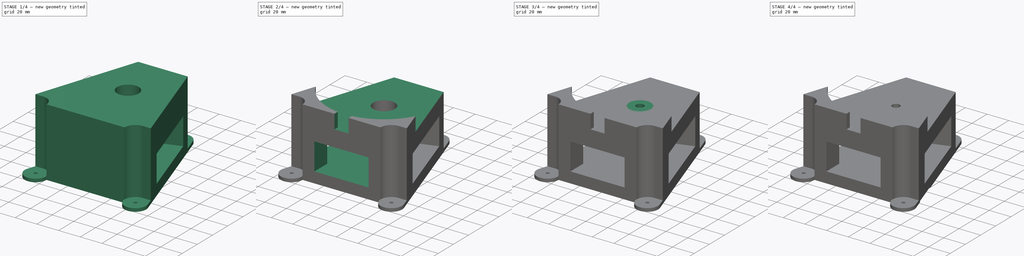
[diagram: build sequence overview — one tinted view per stage of 4, left to right]
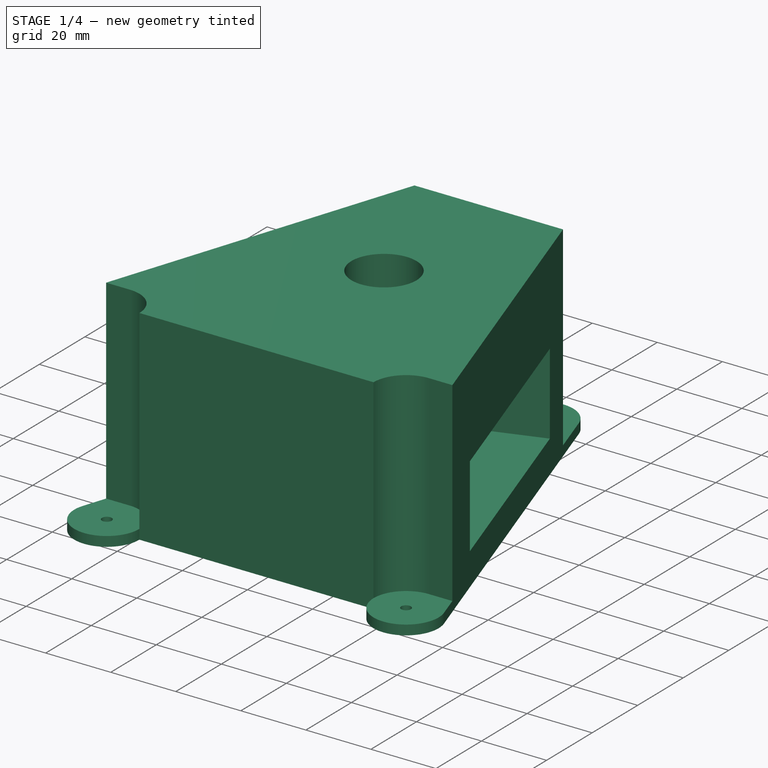
[diagram: stage 1 of 4 — iso view after this stage's code; geometry added in this stage tinted green]
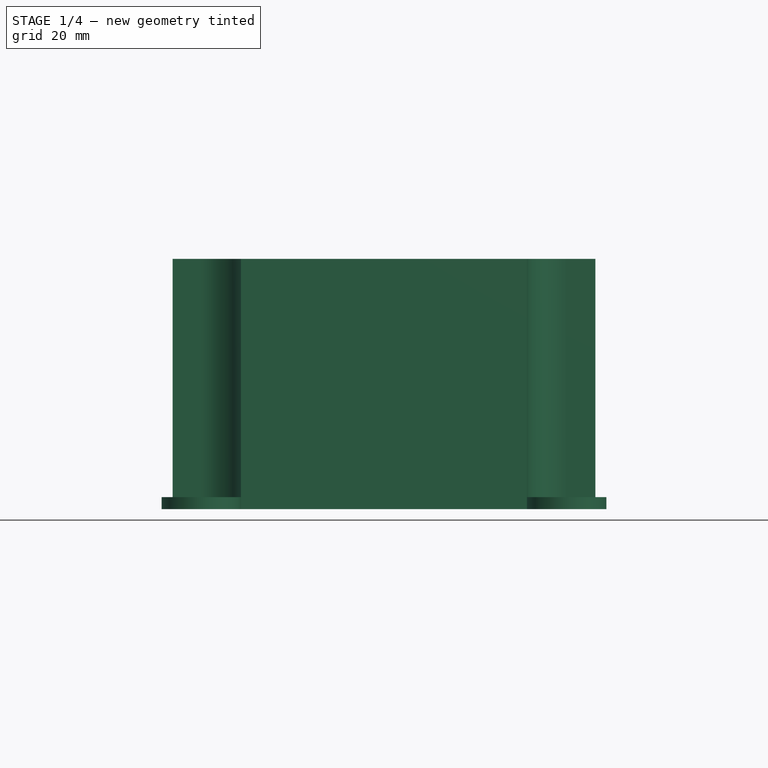
[diagram: stage 1 of 4 — front view after this stage's code; geometry added in this stage tinted green]
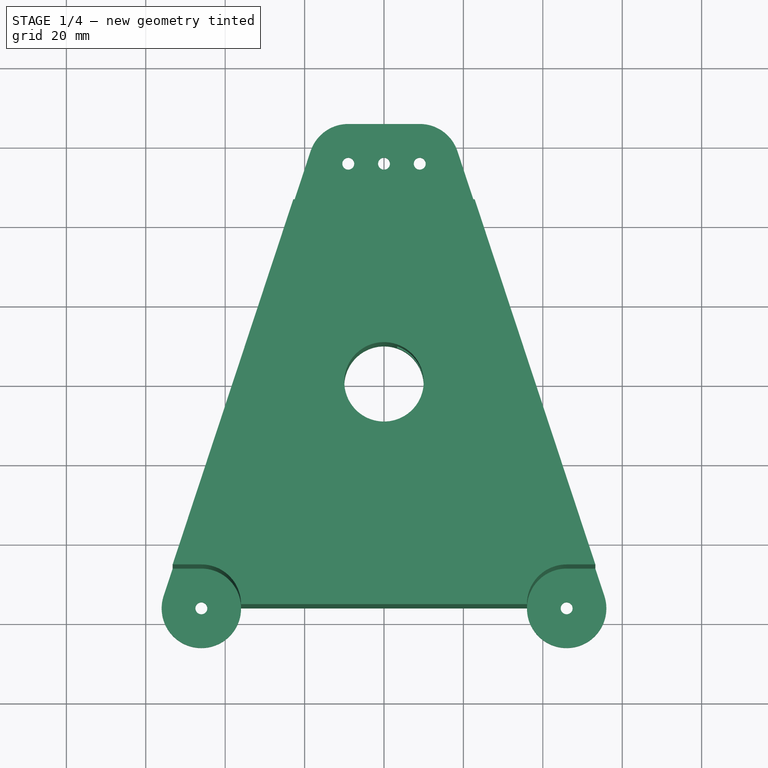
[diagram: stage 1 of 4 — top view after this stage's code; geometry added in this stage tinted green]
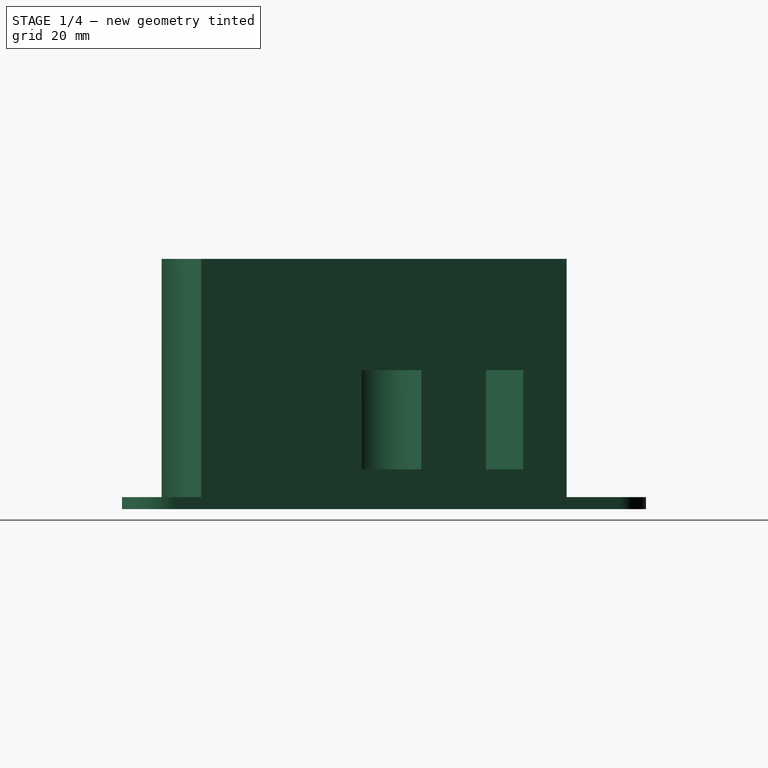
[diagram: stage 1 of 4 — right view after this stage's code; geometry added in this stage tinted green]
FCSTD DOCUMENT  (FreeCAD 0.19R24291 (Git))
Label: Velodyne_Lidar_v5
License: All rights reserved
LicenseURL: http://en.wikipedia.org/wiki/All_rights_reserved
objects: Sketcher::SketchObject×11, PartDesign::Pocket×8, PartDesign::Pad×3, PartDesign::Chamfer×1, PartDesign::Body×1
note: 36 computed .brp shape members not serialized (recipe doc carries the construction recipe); baked Part::Feature solids carry a one-line shape summary decoded from their .brp

FEATURE [Sketcher::SketchObject] Sketch
  FullyConstrained = true
  MapMode = 5
  Support = -> [XY_Plane]
  sketch-geometry (16):
    g0: Circle CenterX=-9 CenterY=56 CenterZ=0 NormalX=0 NormalY=0 NormalZ=1 AngleXU=0 Radius=1.5
    g1: Circle CenterX=9 CenterY=56 CenterZ=0 NormalX=0 NormalY=0 NormalZ=1 AngleXU=0 Radius=1.5
    g2: Circle CenterX=-46 CenterY=-56 CenterZ=0 NormalX=0 NormalY=0 NormalZ=1 AngleXU=0 Radius=1.5
    g3: Circle CenterX=46 CenterY=-56 CenterZ=0 NormalX=0 NormalY=0 NormalZ=1 AngleXU=0 Radius=1.5
    g4: GeomPoint X=0 Y=56 Z=0
    g5: GeomPoint X=0 Y=-56 Z=0
    g6: ArcOfCircle CenterX=-9 CenterY=56 CenterZ=0 NormalX=0 NormalY=0 NormalZ=1 AngleXU=0 Radius=10 StartAngle=1.5708 EndAngle=2.82252
    g7: ArcOfCircle CenterX=9 CenterY=56 CenterZ=0 NormalX=0 NormalY=0 NormalZ=1 AngleXU=0 Radius=10 StartAngle=0.319071 EndAngle=1.5708
    g8: ArcOfCircle CenterX=46 CenterY=-56 CenterZ=0 NormalX=0 NormalY=0 NormalZ=1 AngleXU=0 Radius=10 StartAngle=3.14159 EndAngle=6.60226
    g9: ArcOfCircle CenterX=-46 CenterY=-56 CenterZ=0 NormalX=0 NormalY=0 NormalZ=1 AngleXU=0 Radius=10 StartAngle=2.82252 EndAngle=6.28319
    g10: LineSegment StartX=-55.4953 StartY=-52.8632 StartZ=0 EndX=-18.4953 EndY=59.1368 EndZ=0
    g11: LineSegment StartX=-9.00001 StartY=66 StartZ=0 EndX=9 EndY=66 EndZ=0
    g12: LineSegment StartX=18.4953 StartY=59.1368 StartZ=0 EndX=55.4953 EndY=-52.8631 EndZ=0
    g13: LineSegment StartX=-36 StartY=-56 StartZ=0 EndX=36 EndY=-56 EndZ=0
    g14: Circle CenterX=0 CenterY=0 CenterZ=0 NormalX=0 NormalY=0 NormalZ=1 AngleXU=0 Radius=10
    g15: Circle CenterX=0 CenterY=56 CenterZ=0 NormalX=0 NormalY=0 NormalZ=1 AngleXU=0 Radius=1.5
  constraints (41):
    c: Equal(g2,g3)
    c: Equal(g2,g0)
    c: Equal(g1,g2)
    c: Diameter(g2) = 3
    c: DistanceX(g2,g3) = 92
    c: DistanceX(g0,g1) = 18
    c: DistanceY(g2,g0) = 112
    c: Horizontal(g0,g1)
    c: Horizontal(g2,g3)
    c: PointOnObject(g4,g-2)
    c: Symmetric(g0,g1,g4)
    c: Symmetric(g2,g3,g5)
    c: Symmetric(g5,g4,g-1)
    c: Coincident(g6,g0)
    c: Coincident(g7,g1)
    c: Coincident(g8,g3)
    c: Coincident(g9,g2)
    c: Coincident(g10,g9)
    c: Coincident(g10,g6)
    c: Coincident(g11,g6)
    c: Coincident(g11,g7)
    c: Horizontal(g11)
    c: Coincident(g12,g7)
    c: Coincident(g12,g8)
    c: Tangent(g9,g10)
    c: Tangent(g10,g6)
    c: Tangent(g6,g11)
    c: Tangent(g11,g7)
    c: Tangent(g7,g12)
    c: Tangent(g12,g8)
    c: Diameter(g9) = 20
    c: Equal(g6,g9)
    c: Coincident(g13,g9)
    c: Coincident(g13,g8)
    c: Horizontal(g13)
    c: Horizontal(g9,g2)
    c: Equal(g9,g8)
    c: Coincident(g14,g-1)
    c: Radius(g14) = 10
    c: Coincident(g15,g4)
    c: Equal(g15,g1)
FEATURE [PartDesign::Pad] Pad
  Direction = (1,1,1)
  Length = 3
  Length2 = 100
  Profile = -> Sketch
  Type = 0
FEATURE [Sketcher::SketchObject] Sketch001
  FullyConstrained = true
  MapMode = 5
  Placement = pos=(0,0,3) rot=(0,0,1;0rad)
  Support = -> [Pad]
  sketch-geometry (16):
    g0: ArcOfCircle CenterX=-46 CenterY=-56 CenterZ=0 NormalX=0 NormalY=0 NormalZ=1 AngleXU=0 Radius=10 StartAngle=0 EndAngle=1.5708
    g1: ArcOfCircle CenterX=46 CenterY=-56 CenterZ=0 NormalX=0 NormalY=0 NormalZ=1 AngleXU=0 Radius=10 StartAngle=1.5708 EndAngle=3.14159
    g2: LineSegment StartX=-22.8351 StartY=46 StartZ=0 EndX=22.8351 EndY=46 EndZ=0
    g3: GeomPoint X=0 Y=56 Z=0
    g4: GeomPoint X=0 Y=-56 Z=0
    g5: LineSegment StartX=-22.8351 StartY=46 StartZ=0 EndX=-53.228 EndY=-46 EndZ=0
    g6: LineSegment StartX=-53.228 StartY=-46 StartZ=0 EndX=-46 EndY=-46 EndZ=0
    g7: LineSegment StartX=46 StartY=-46 StartZ=0 EndX=53.228 EndY=-46 EndZ=0
    g8: LineSegment StartX=53.228 StartY=-46 StartZ=0 EndX=22.8351 EndY=46 EndZ=0
    g9: GeomPoint X=-9 Y=56 Z=0
    g10: GeomPoint X=9 Y=56 Z=0
    g11: GeomPoint X=0 Y=46 Z=0
    g12: LineSegment StartX=-46 StartY=-56 StartZ=0 EndX=-9 EndY=56 EndZ=0
    g13: LineSegment StartX=9 StartY=56 StartZ=0 EndX=46 EndY=-56 EndZ=0
    g14: LineSegment StartX=-36 StartY=-56 StartZ=0 EndX=36 EndY=-56 EndZ=0
    g15: Circle CenterX=0 CenterY=0 CenterZ=0 NormalX=0 NormalY=0 NormalZ=1 AngleXU=0 Radius=10
  constraints (38):
    c: Diameter(g0) = 20
    c: Horizontal(g2)
    c: Equal(g0,g1)
    c: PointOnObject(g3,g-2)
    c: Symmetric(g1,g0,g4)
    c: Symmetric(g4,g3,g-1)
    c: DistanceX(g0,g1) = 92
    c: Horizontal(g0,g1)
    c: Coincident(g5,g2)
    c: Coincident(g6,g5)
    c: Coincident(g6,g0)
    c: Coincident(g7,g1)
    c: Coincident(g8,g7)
    c: Coincident(g8,g2)
    c: Symmetric(g10,g9,g3)
    c: DistanceY(g0,g9) = 112
    c: Horizontal(g9,g3)
    c: Horizontal(g6)
    c: Horizontal(g7)
    c: Tangent(g0,g6)
    c: Tangent(g1,g7)
    c: DistanceY(g2,g9) = 10
    c: PointOnObject(g11,g-2)
    c: Symmetric(g2,g2,g11)
    c: DistanceX(g9,g10) = 18
    c: Horizontal(g0,g0)
    c: Coincident(g12,g0)
    c: Coincident(g12,g9)
    c: Parallel(g12,g5)
    c: Coincident(g13,g10)
    c: Coincident(g13,g1)
    c: Parallel(g13,g8)
    c: Distance(g2,g12) = 10
    c: Coincident(g14,g0)
    c: Coincident(g14,g1)
    c: Horizontal(g14)
    c: Coincident(g15,g-1)
    c: Radius(g15) = 10
FEATURE [PartDesign::Pad] Pad001
  BaseFeature = -> Pad
  Direction = (1,1,1)
  Length = 60
  Length2 = 100
  Profile = -> Sketch001
  Type = 0
FEATURE [Sketcher::SketchObject] Sketch004
  FullyConstrained = true
  MapMode = 5
  Placement = pos=(34.2894,11.3277,0) rot=(0.4551,0.629636,0.629636;2.28742rad)
  Support = -> [Pad001]
  sketch-geometry (4):
    g0: LineSegment StartX=-45 StartY=10 StartZ=0 EndX=25 EndY=10 EndZ=0
    g1: LineSegment StartX=25 StartY=10 StartZ=0 EndX=25 EndY=35 EndZ=0
    g2: LineSegment StartX=25 StartY=35 StartZ=0 EndX=-45 EndY=35 EndZ=0
    g3: LineSegment StartX=-45 StartY=35 StartZ=0 EndX=-45 EndY=10 EndZ=0
  constraints (12):
    c: Coincident(g0,g1)
    c: Coincident(g1,g2)
    c: Coincident(g2,g3)
    c: Coincident(g3,g0)
    c: Horizontal(g0)
    c: Horizontal(g2)
    c: Vertical(g1)
    c: Vertical(g3)
    c: DistanceX(g0,g0) = 70
    c: DistanceY(g1,g1) = 25
    c: DistanceY(g-1,g0) = 10
    c: DistanceX(g-1,g0) = 25
FEATURE [PartDesign::Pocket] Pocket
  BaseFeature = -> Pad001
  Length = 30
  Length2 = 100
  Profile = -> Sketch004
  Type = 0
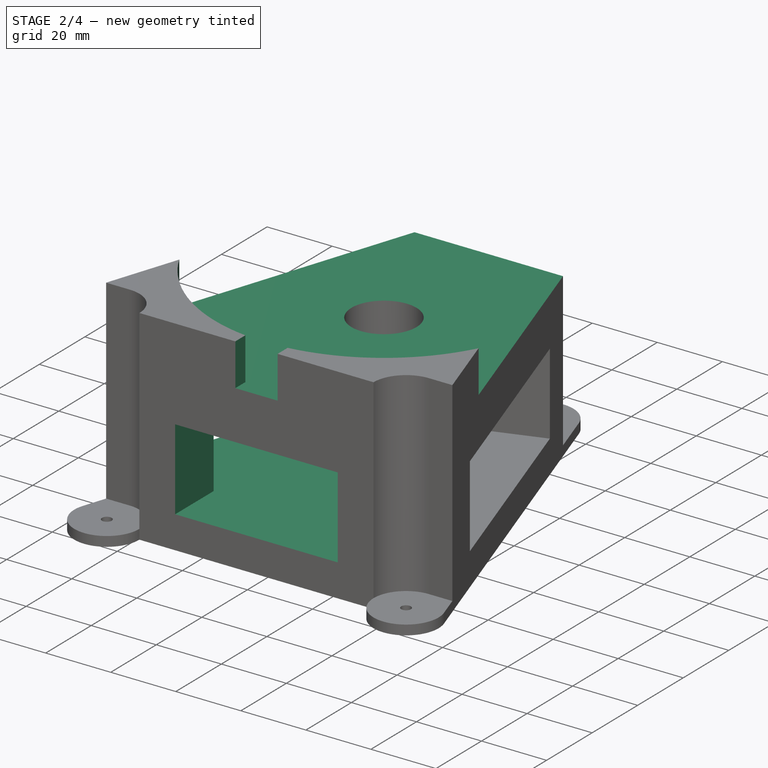
[diagram: stage 2 of 4 — iso view after this stage's code; geometry added in this stage tinted green]
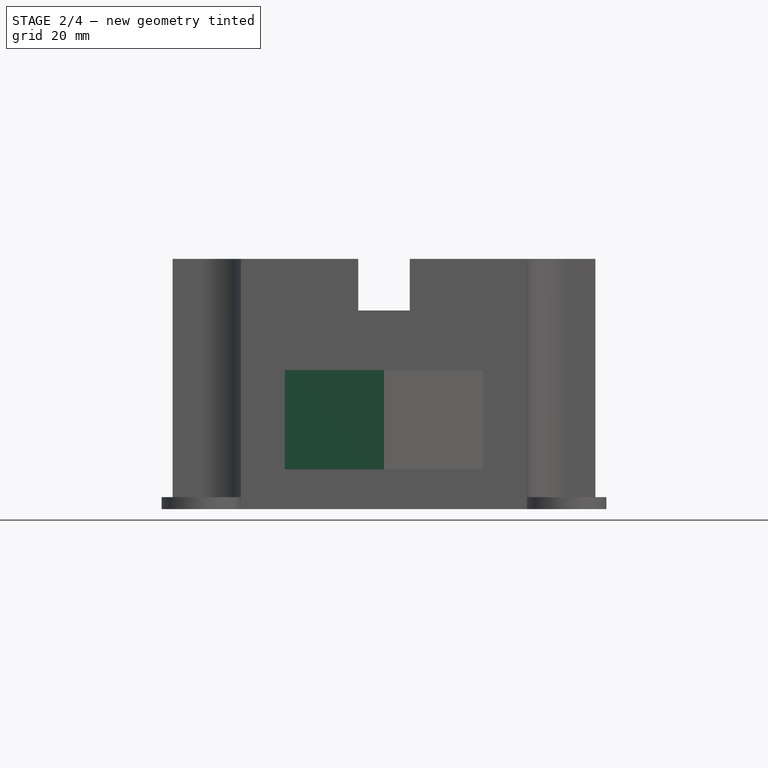
[diagram: stage 2 of 4 — front view after this stage's code; geometry added in this stage tinted green]
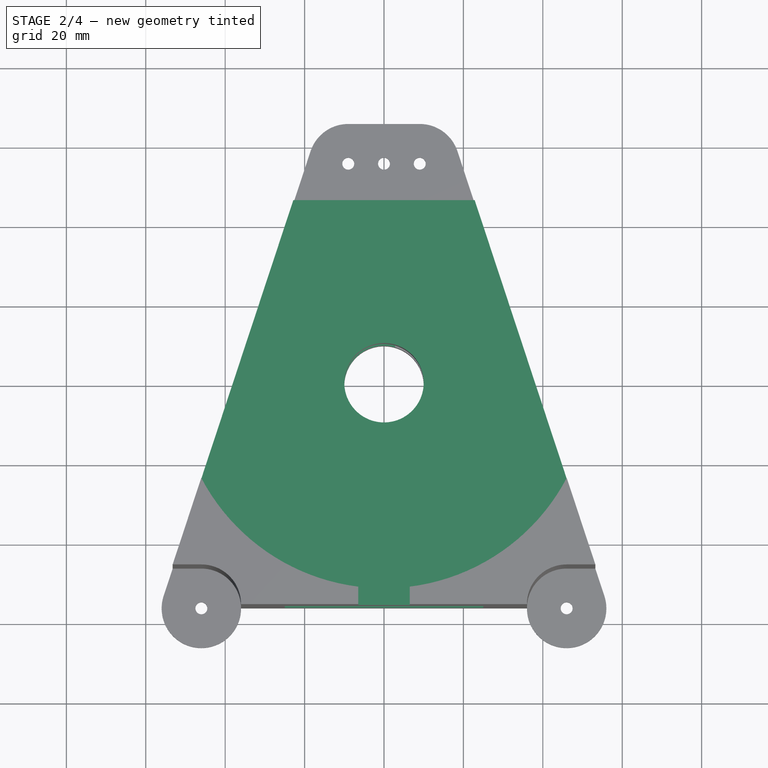
[diagram: stage 2 of 4 — top view after this stage's code; geometry added in this stage tinted green]
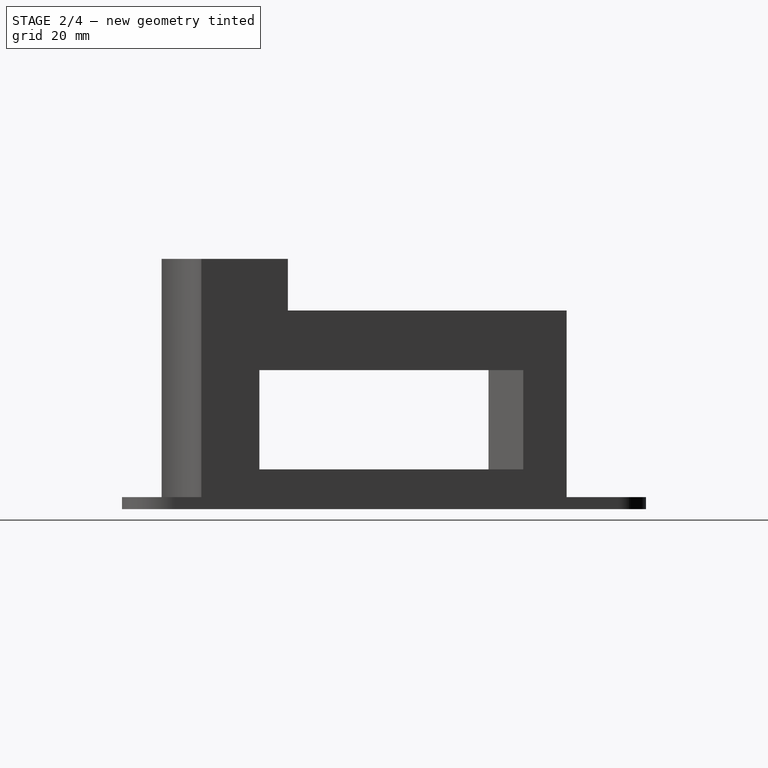
[diagram: stage 2 of 4 — right view after this stage's code; geometry added in this stage tinted green]
FEATURE [Sketcher::SketchObject] Sketch005
  FullyConstrained = true
  MapMode = 5
  Placement = pos=(-34.2894,11.3277,0) rot=(-0.4551,0.629636,0.629636;3.99577rad)
  Support = -> [Pocket]
  sketch-geometry (4):
    g0: LineSegment StartX=-25 StartY=10 StartZ=0 EndX=45 EndY=10 EndZ=0
    g1: LineSegment StartX=45 StartY=10 StartZ=0 EndX=45 EndY=35 EndZ=0
    g2: LineSegment StartX=45 StartY=35 StartZ=0 EndX=-25 EndY=35 EndZ=0
    g3: LineSegment StartX=-25 StartY=35 StartZ=0 EndX=-25 EndY=10 EndZ=0
  constraints (12):
    c: Coincident(g0,g1)
    c: Coincident(g1,g2)
    c: Coincident(g2,g3)
    c: Coincident(g3,g0)
    c: Horizontal(g0)
    c: Horizontal(g2)
    c: Vertical(g1)
    c: Vertical(g3)
    c: DistanceX(g0,g0) = 70
    c: DistanceX(g0,g-1) = 25
    c: DistanceY(g1,g1) = 25
    c: DistanceY(g-1,g0) = 10
FEATURE [PartDesign::Pocket] Pocket001
  BaseFeature = -> Pocket
  Length = 30
  Length2 = 100
  Profile = -> Sketch005
  Type = 0
FEATURE [Sketcher::SketchObject] Sketch006
  FullyConstrained = true
  MapMode = 5
  Placement = pos=(0,-56,0) rot=(1,0,0;1.5708rad)
  Support = -> [Pocket001]
  sketch-geometry (4):
    g0: LineSegment StartX=-25 StartY=35 StartZ=0 EndX=25 EndY=35 EndZ=0
    g1: LineSegment StartX=25 StartY=35 StartZ=0 EndX=25 EndY=10 EndZ=0
    g2: LineSegment StartX=25 StartY=10 StartZ=0 EndX=-25 EndY=10 EndZ=0
    g3: LineSegment StartX=-25 StartY=10 StartZ=0 EndX=-25 EndY=35 EndZ=0
  constraints (12):
    c: Coincident(g0,g1)
    c: Coincident(g1,g2)
    c: Coincident(g2,g3)
    c: Coincident(g3,g0)
    c: Horizontal(g0)
    c: Horizontal(g2)
    c: Vertical(g1)
    c: Vertical(g3)
    c: DistanceY(g-1,g1) = 10
    c: DistanceY(g1,g1) = 25
    c: DistanceX(g0,g0) = 50
    c: DistanceX(g-1,g1) = 25
FEATURE [PartDesign::Pocket] Pocket002
  BaseFeature = -> Pocket001
  Length = 80
  Length2 = 100
  Profile = -> Sketch006
  Type = 0
FEATURE [Sketcher::SketchObject] Sketch007
  FullyConstrained = true
  MapMode = 5
  Placement = pos=(0,0,63) rot=(0,0,1;0rad)
  Support = -> [Pocket002]
  sketch-geometry (4):
    g0: ArcOfCircle CenterX=0 CenterY=0 CenterZ=0 NormalX=0 NormalY=0 NormalZ=1 AngleXU=0 Radius=52 StartAngle=4.83772 EndAngle=10.8702
    g1: LineSegment StartX=-6.5 StartY=-51.5922 StartZ=0 EndX=-6.5 EndY=-56.5922 EndZ=0
    g2: LineSegment StartX=6.5 StartY=-51.5922 StartZ=0 EndX=6.5 EndY=-56.5922 EndZ=0
    g3: LineSegment StartX=6.5 StartY=-56.5922 StartZ=0 EndX=-6.5 EndY=-56.5922 EndZ=0
  constraints (12):
    c: Coincident(g0,g-1)
    c: Radius(g0) = 52
    c: Horizontal(g0,g0)
    c: DistanceX(g0,g0) = 13
    c: Coincident(g1,g0)
    c: Vertical(g1)
    c: Coincident(g2,g0)
    c: Vertical(g2)
    c: Coincident(g3,g2)
    c: Coincident(g3,g1)
    c: Horizontal(g3)
    c: DistanceY(g2,g2) = 5
FEATURE [PartDesign::Pocket] Pocket003
  BaseFeature = -> Pocket002
  Length = 13
  Length2 = 100
  Profile = -> Sketch007
  Type = 0
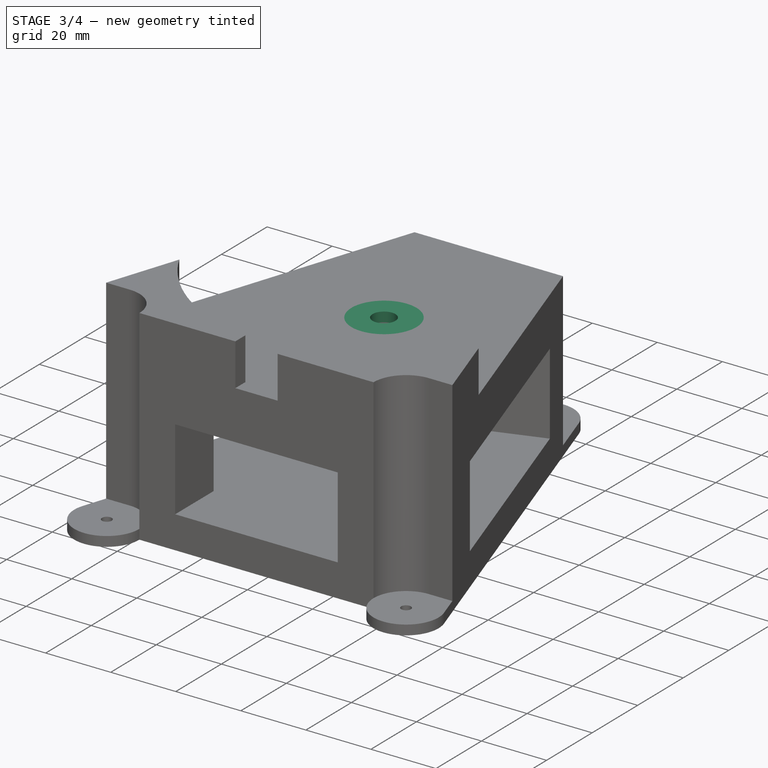
[diagram: stage 3 of 4 — iso view after this stage's code; geometry added in this stage tinted green]
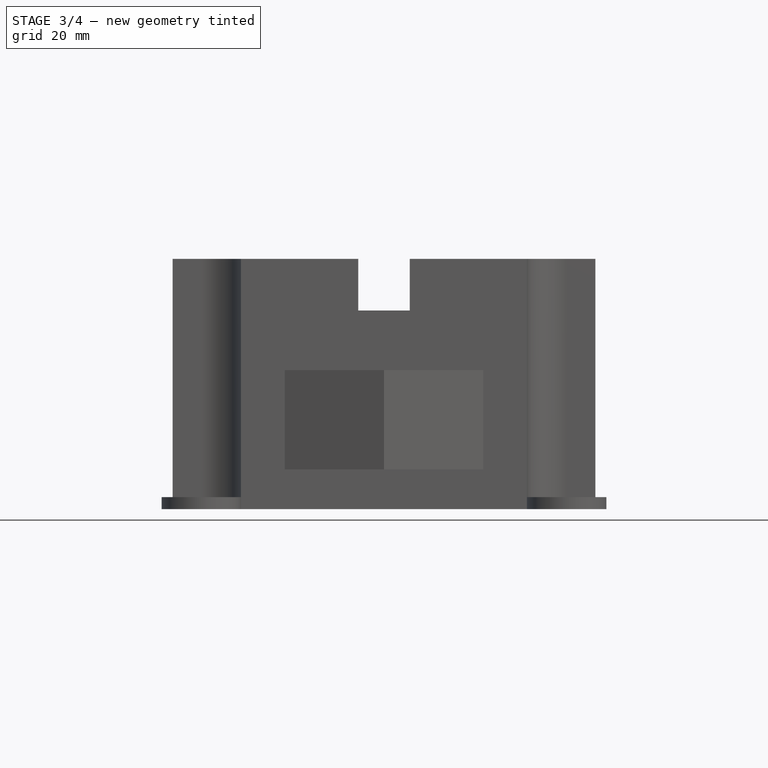
[diagram: stage 3 of 4 — front view after this stage's code; geometry added in this stage tinted green]
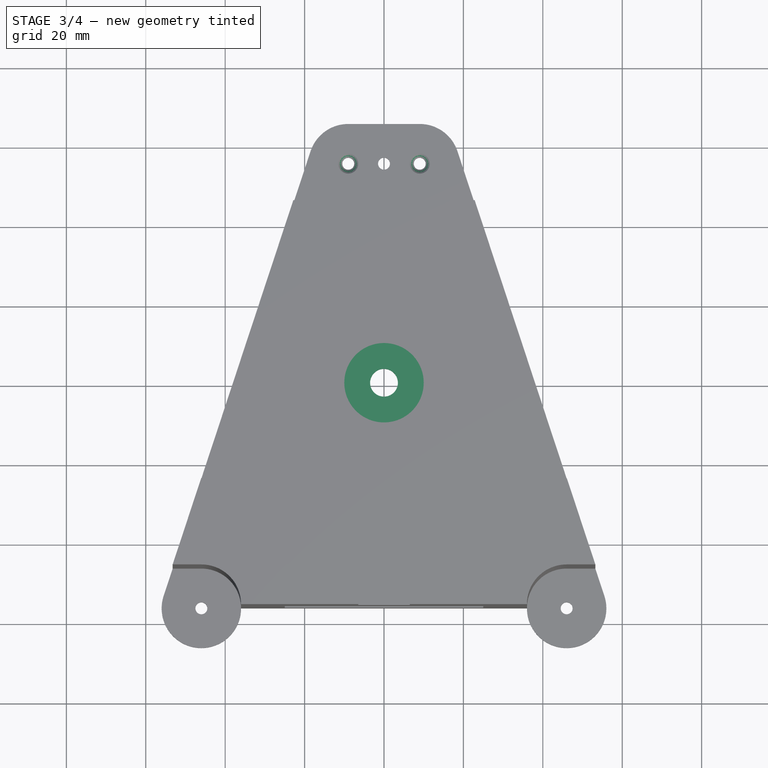
[diagram: stage 3 of 4 — top view after this stage's code; geometry added in this stage tinted green]
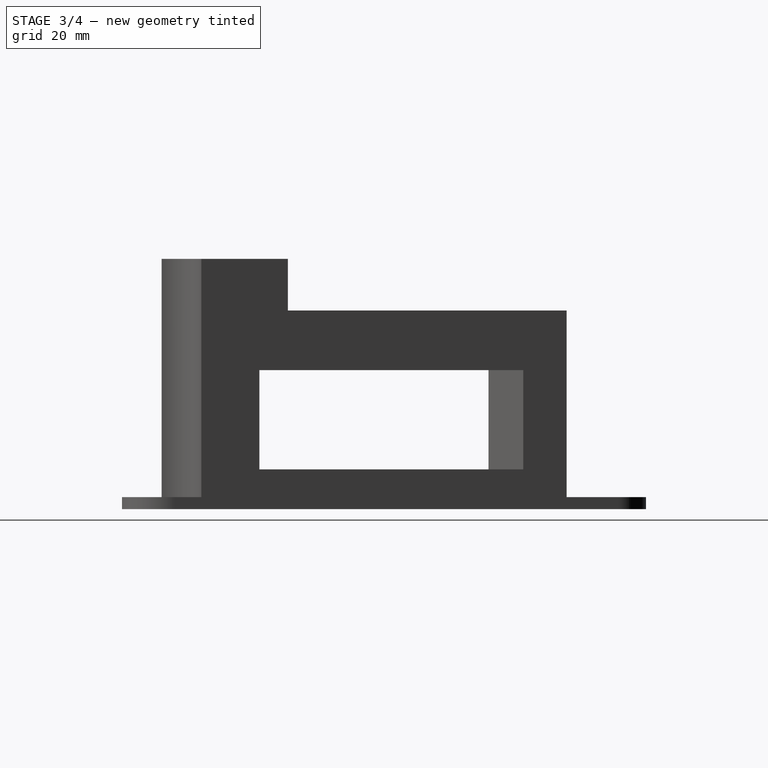
[diagram: stage 3 of 4 — right view after this stage's code; geometry added in this stage tinted green]
FEATURE [Sketcher::SketchObject] Sketch008
  FullyConstrained = true
  MapMode = 5
  Placement = pos=(0,0,50) rot=(0,0,1;0rad)
  sketch-geometry (2):
    g0: Circle CenterX=0 CenterY=0 CenterZ=0 NormalX=0 NormalY=0 NormalZ=1 AngleXU=0 Radius=10
    g1: Circle CenterX=0 CenterY=0 CenterZ=0 NormalX=0 NormalY=0 NormalZ=1 AngleXU=0 Radius=3.5
  constraints (4):
    c: Coincident(g0,g-1)
    c: Coincident(g1,g0)
    c: Radius(g0) = 10
    c: Radius(g1) = 3.5
FEATURE [PartDesign::Pad] Pad002
  BaseFeature = -> Pocket003
  Direction = (1,1,1)
  Length = 3
  Length2 = 100
  Profile = -> Sketch008
  Reversed = true
  Type = 0
FEATURE [PartDesign::Chamfer] Chamfer001
  Angle = 45
  Base = -> Pad002 [Edge29,Edge27,Edge19]
  BaseFeature = -> Pad002
  ChamferType = 0
  FlipDirection = false
  Size = 1
  Size2 = 1
  SupportTransform = false
FEATURE [Sketcher::SketchObject] Sketch009
  FullyConstrained = true
  MapMode = 5
  Placement = pos=(0,0,35) rot=(1,0,0;3.14159rad)
  sketch-geometry (2):
    g0: Circle CenterX=-15.25 CenterY=0 CenterZ=0 NormalX=0 NormalY=0 NormalZ=1 AngleXU=0 Radius=1.5
    g1: Circle CenterX=15.25 CenterY=0 CenterZ=0 NormalX=0 NormalY=0 NormalZ=1 AngleXU=0 Radius=1.5
  constraints (5):
    c: PointOnObject(g1,g-1)
    c: Equal(g1,g0)
    c: Symmetric(g0,g1,g-1)
    c: Diameter(g1) = 3
    c: DistanceX(g0,g1) = 30.5
FEATURE [PartDesign::Pocket] Pocket004
  BaseFeature = -> Chamfer001
  Length = 12
  Length2 = 100
  Profile = -> Sketch009
  Type = 0
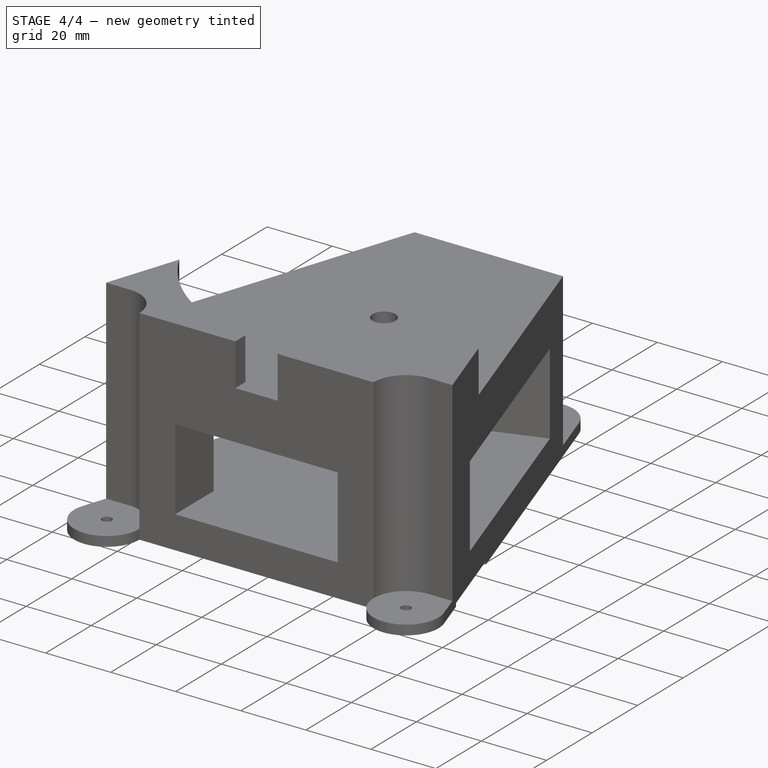
[diagram: stage 4 of 4 — iso view after this stage's code; geometry added in this stage tinted green]
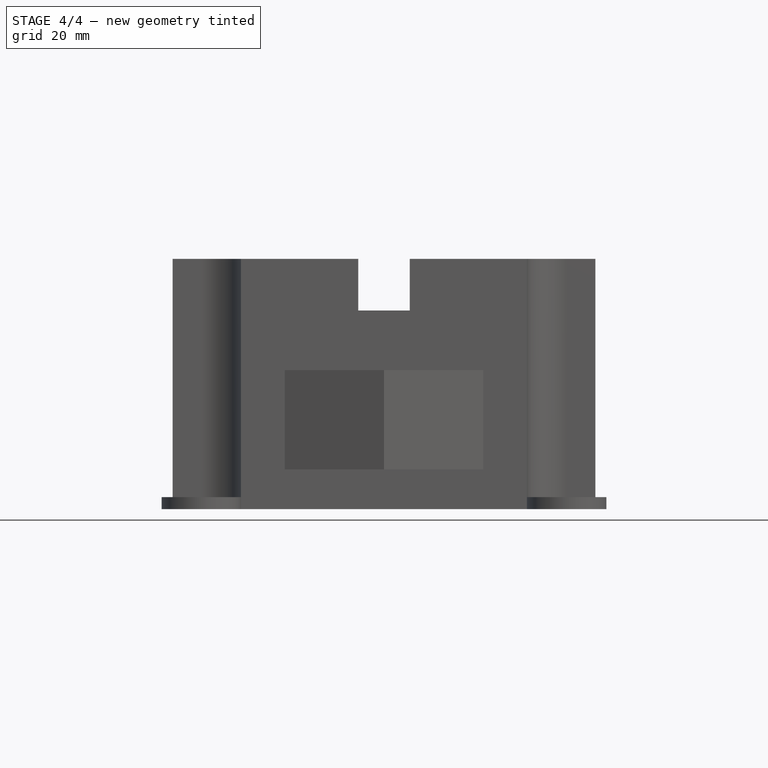
[diagram: stage 4 of 4 — front view after this stage's code; geometry added in this stage tinted green]
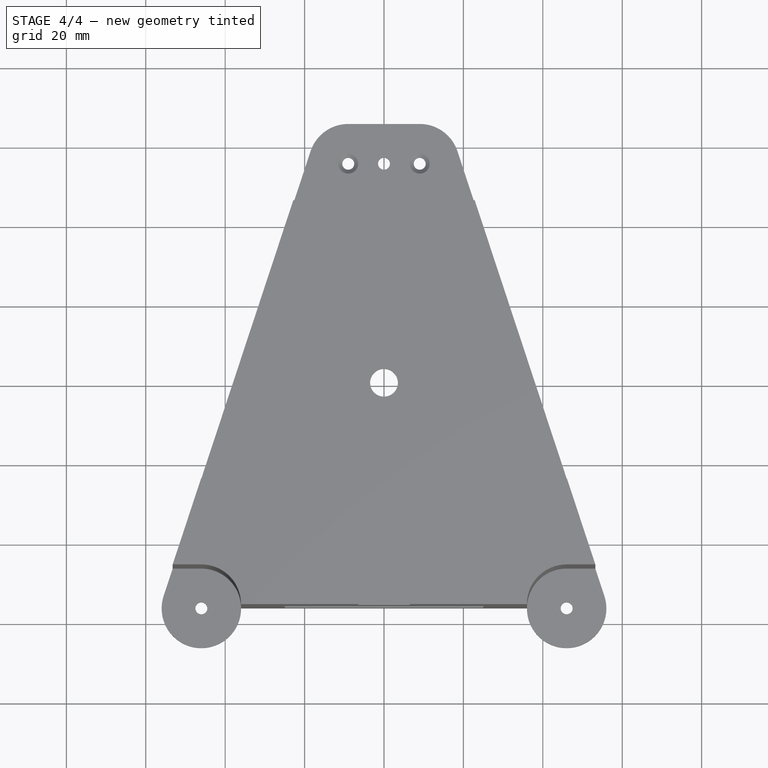
[diagram: stage 4 of 4 — top view after this stage's code; geometry added in this stage tinted green]
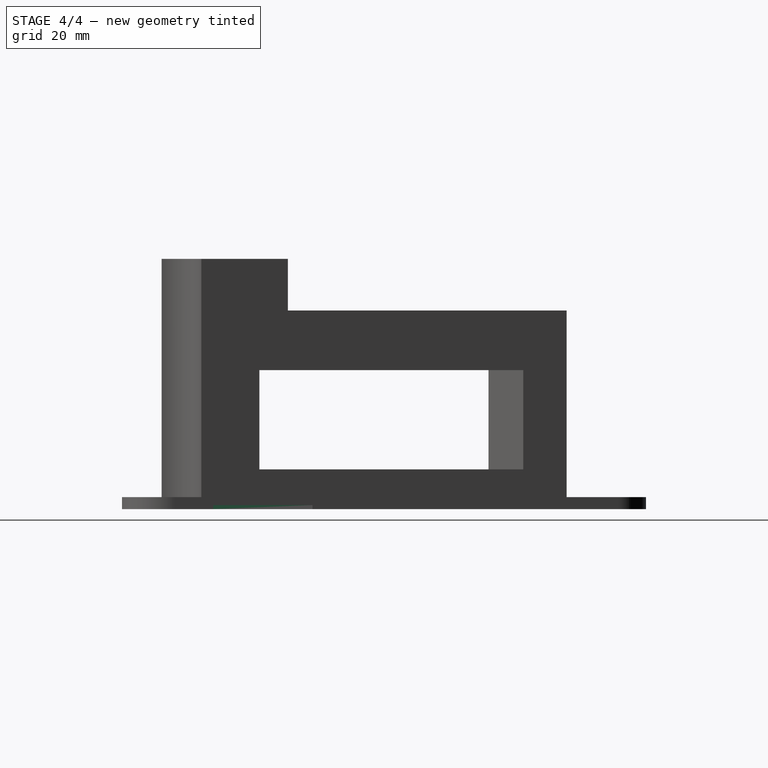
[diagram: stage 4 of 4 — right view after this stage's code; geometry added in this stage tinted green]
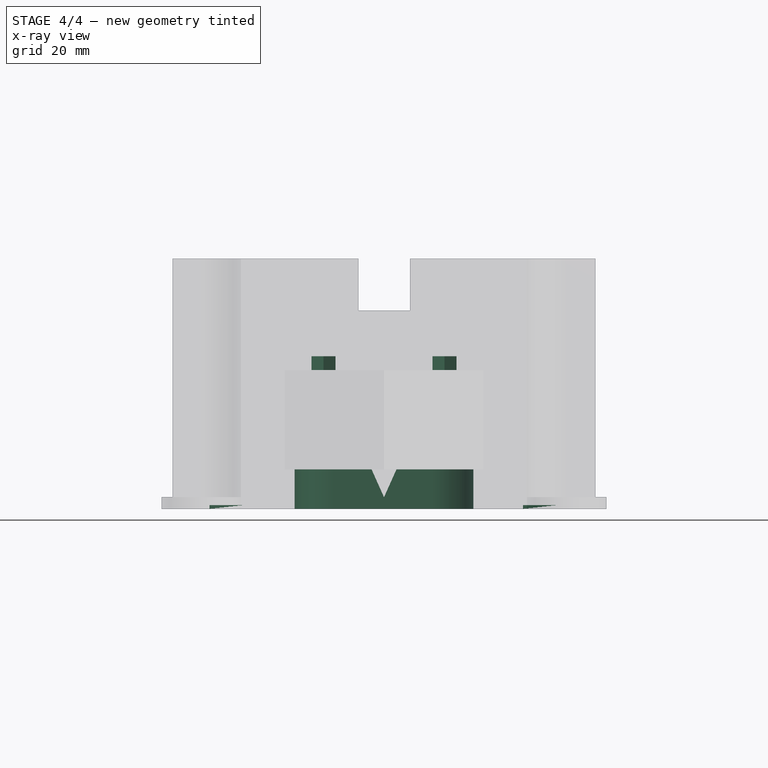
[diagram: stage 4 of 4 — x-ray composite at the front view; earlier geometry ghosted, this stage's added geometry solid]
FEATURE [Sketcher::SketchObject] Sketch010
  FullyConstrained = true
  MapMode = 5
  Placement = pos=(0,0,0) rot=(1,0,0;3.14159rad)
  sketch-geometry (4):
    g0: ArcOfCircle CenterX=-12.5 CenterY=0 CenterZ=0 NormalX=0 NormalY=0 NormalZ=1 AngleXU=0 Radius=10 StartAngle=1.57079 EndAngle=4.71239
    g1: ArcOfCircle CenterX=12.5 CenterY=0 CenterZ=0 NormalX=0 NormalY=0 NormalZ=1 AngleXU=0 Radius=10 StartAngle=4.71239 EndAngle=7.85398
    g2: LineSegment StartX=-12.5 StartY=10 StartZ=0 EndX=12.5 EndY=10 EndZ=0
    g3: LineSegment StartX=12.5 StartY=-10 StartZ=0 EndX=-12.5 EndY=-10 EndZ=0
  constraints (13):
    c: PointOnObject(g1,g-1)
    c: Coincident(g2,g0)
    c: Coincident(g2,g1)
    c: Horizontal(g2)
    c: Coincident(g3,g1)
    c: Coincident(g3,g0)
    c: Horizontal(g3)
    c: Tangent(g2,g1)
    c: Tangent(g1,g3)
    c: Tangent(g2,g0)
    c: Diameter(g1) = 20
    c: Symmetric(g1,g0,g-1)
    c: DistanceX(g0,g1) = 25
FEATURE [PartDesign::Pocket] Pocket005
  BaseFeature = -> Pocket004
  Length = 10
  Length2 = 100
  Profile = -> Sketch010
  Type = 0
FEATURE [Sketcher::SketchObject] Sketch011
  FullyConstrained = true
  MapMode = 5
  Placement = pos=(0,0,35) rot=(1,0,0;3.14159rad)
  Support = -> [Pocket005]
  sketch-geometry (14):
    g0: LineSegment StartX=-15.25 StartY=3.5 StartZ=0 EndX=-18.2811 EndY=1.75 EndZ=0
    g1: LineSegment StartX=-18.2811 StartY=1.75 StartZ=0 EndX=-18.2811 EndY=-1.75 EndZ=0
    g2: LineSegment StartX=-18.2811 StartY=-1.75 StartZ=0 EndX=-15.25 EndY=-3.5 EndZ=0
    g3: LineSegment StartX=-15.25 StartY=-3.5 StartZ=0 EndX=-12.2189 EndY=-1.75 EndZ=0
    g4: LineSegment StartX=-12.2189 StartY=-1.75 StartZ=0 EndX=-12.2189 EndY=1.75 EndZ=0
    g5: LineSegment StartX=-12.2189 StartY=1.75 StartZ=0 EndX=-15.25 EndY=3.5 EndZ=0
    g6: Circle CenterX=-15.25 CenterY=0 CenterZ=0 NormalX=0 NormalY=0 NormalZ=1 AngleXU=0 Radius=3.5
    g7: LineSegment StartX=15.25 StartY=3.5 StartZ=0 EndX=12.2189 EndY=1.75 EndZ=0
    g8: LineSegment StartX=12.2189 StartY=1.75 StartZ=0 EndX=12.2189 EndY=-1.75 EndZ=0
    g9: LineSegment StartX=12.2189 StartY=-1.75 StartZ=0 EndX=15.25 EndY=-3.5 EndZ=0
    g10: LineSegment StartX=15.25 StartY=-3.5 StartZ=0 EndX=18.2811 EndY=-1.75 EndZ=0
    g11: LineSegment StartX=18.2811 StartY=-1.75 StartZ=0 EndX=18.2811 EndY=1.75 EndZ=0
    g12: LineSegment StartX=18.2811 StartY=1.75 StartZ=0 EndX=15.25 EndY=3.5 EndZ=0
    g13: Circle CenterX=15.25 CenterY=0 CenterZ=0 NormalX=0 NormalY=0 NormalZ=1 AngleXU=0 Radius=3.5
  constraints (33):
    c: Coincident(g0,g1)
    c: Coincident(g1,g2)
    c: Coincident(g2,g3)
    c: Coincident(g3,g4)
    c: Coincident(g4,g5)
    c: Coincident(g5,g0)
    c: Equal(g0, g1-g5) x5
    c: PointOnObject(g0,g6)
    c: PointOnObject(g1,g6)
    c: PointOnObject(g2,g6)
    c: PointOnObject(g3,g6)
    c: PointOnObject(g4,g6)
    c: PointOnObject(g5,g6)
    c: PointOnObject(g6,g-1)
    c: Coincident(g7,g8)
    c: Coincident(g8,g9)
    c: Coincident(g9,g10)
    c: Coincident(g10,g11)
    c: Coincident(g11,g12)
    c: Coincident(g12,g7)
    c: Equal(g7, g8-g12) x5
    c: PointOnObject(g7,g13)
    c: PointOnObject(g8,g13)
    c: PointOnObject(g9,g13)
    c: PointOnObject(g10,g13)
    c: PointOnObject(g11,g13)
    c: PointOnObject(g12,g13)
    c: Symmetric(g13,g6,g-1)
    c: Vertical(g13,g7)
    c: Vertical(g6,g0)
    c: DistanceX(g6,g13) = 30.5
    c: DistanceY(g2,g0) = 7
    c: Equal(g5,g7)
FEATURE [PartDesign::Pocket] Pocket006
  BaseFeature = -> Pocket005
  Length = 3.5
  Length2 = 100
  Profile = -> Sketch011
  Type = 0
FEATURE [Sketcher::SketchObject] Sketch012
  FullyConstrained = true
  MapMode = 5
  Placement = pos=(0,0,0) rot=(1,0,0;3.14159rad)
  Support = -> [Pocket006]
  sketch-geometry (8):
    g0: LineSegment StartX=-65 StartY=43 StartZ=0 EndX=-35 EndY=43 EndZ=0
    g1: LineSegment StartX=-35 StartY=43 StartZ=0 EndX=-35 EndY=18 EndZ=0
    g2: LineSegment StartX=-35 StartY=18 StartZ=0 EndX=-65 EndY=18 EndZ=0
    g3: LineSegment StartX=-65 StartY=18 StartZ=0 EndX=-65 EndY=43 EndZ=0
    g4: LineSegment StartX=35 StartY=43 StartZ=0 EndX=65 EndY=43 EndZ=0
    g5: LineSegment StartX=65 StartY=43 StartZ=0 EndX=65 EndY=18 EndZ=0
    g6: LineSegment StartX=65 StartY=18 StartZ=0 EndX=35 EndY=18 EndZ=0
    g7: LineSegment StartX=35 StartY=18 StartZ=0 EndX=35 EndY=43 EndZ=0
  constraints (24):
    c: Coincident(g0,g1)
    c: Coincident(g1,g2)
    c: Coincident(g2,g3)
    c: Coincident(g3,g0)
    c: Horizontal(g0)
    c: Horizontal(g2)
    c: Vertical(g1)
    c: Vertical(g3)
    c: Coincident(g4,g5)
    c: Coincident(g5,g6)
    c: Coincident(g6,g7)
    c: Coincident(g7,g4)
    c: Horizontal(g4)
    c: Horizontal(g6)
    c: Vertical(g5)
    c: Vertical(g7)
    c: Horizontal(g0,g4)
    c: Horizontal(g1,g6)
    c: Equal(g0,g4)
    c: DistanceX(g0,g4) = 70
    c: DistanceX(g0,g-1) = 35
    c: DistanceX(g0,g0) = 30
    c: DistanceY(g-1,g1) = 18
    c: DistanceY(g1,g1) = 25
FEATURE [PartDesign::Pocket] Pocket007
  BaseFeature = -> Pocket006
  Length = 1
  Length2 = 100
  Profile = -> Sketch012
  Type = 0
FEATURE [PartDesign::Body] Body
  Group = -> [Sketch,Pad,Sketch001,Pad001,Sketch004,Pocket,Sketch005,Pocket001,Sketch006,Pocket002,Sketch007,Pocket003,Sketch008,Pad002,Chamfer001,Sketch009,Pocket004,Sketch010,Pocket005,Sketch011,Pocket006,Sketch012,Pocket007]
  Origin = -> Origin
  Tip = -> Pocket007
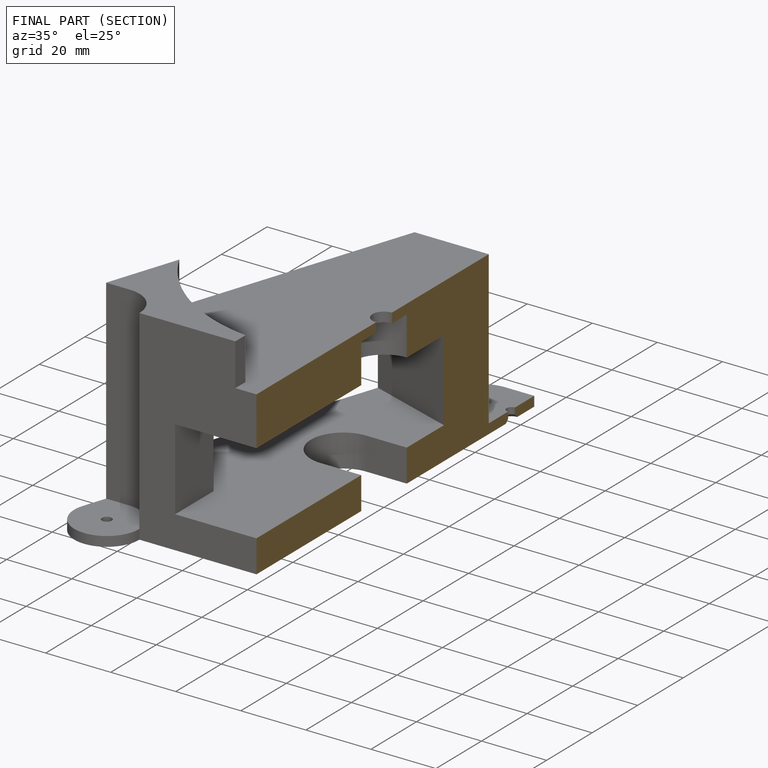
[diagram: finished part — half-section view (interior)]
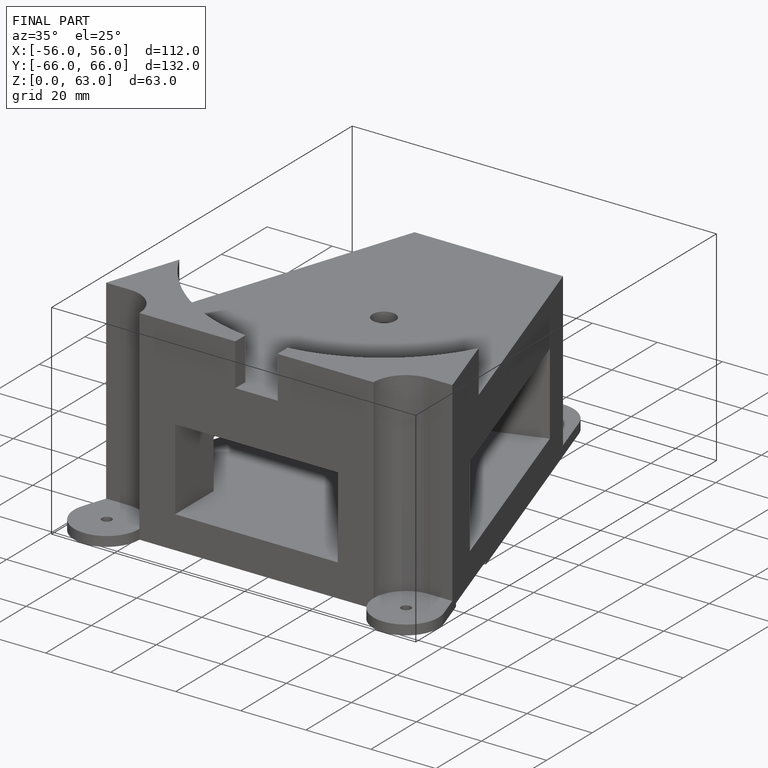
[diagram: finished part — iso view with bounding-box wireframe]
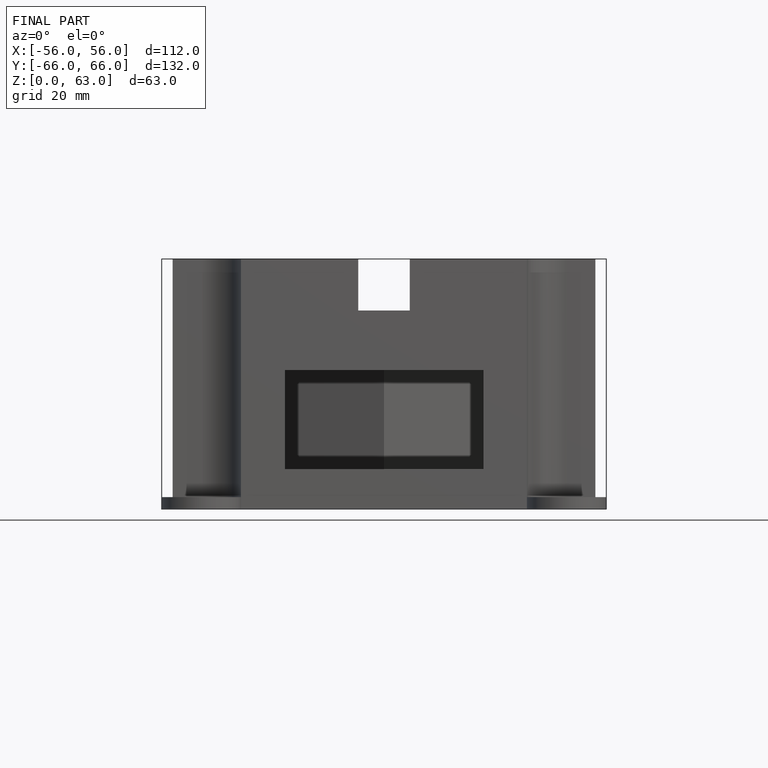
[diagram: finished part — front view with bounding-box wireframe]
